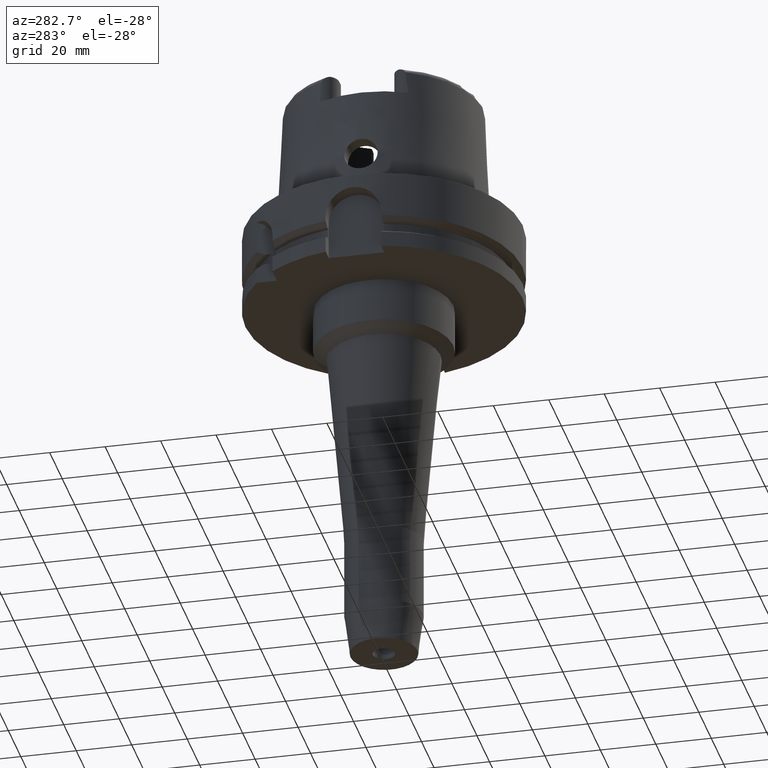
[diagram: clean part render]
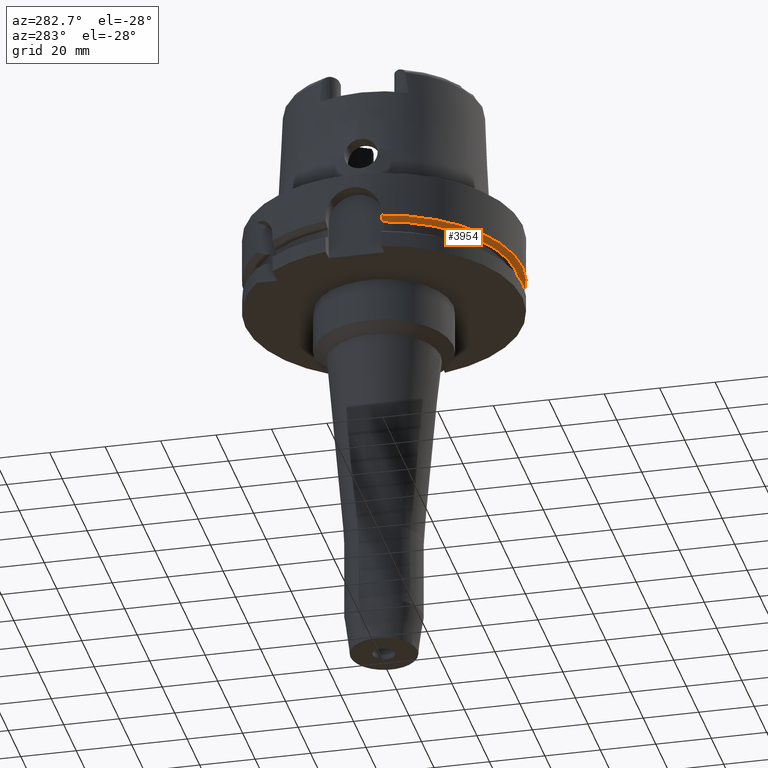
[diagram: same view with one face highlighted and labeled with its STEP entity id]
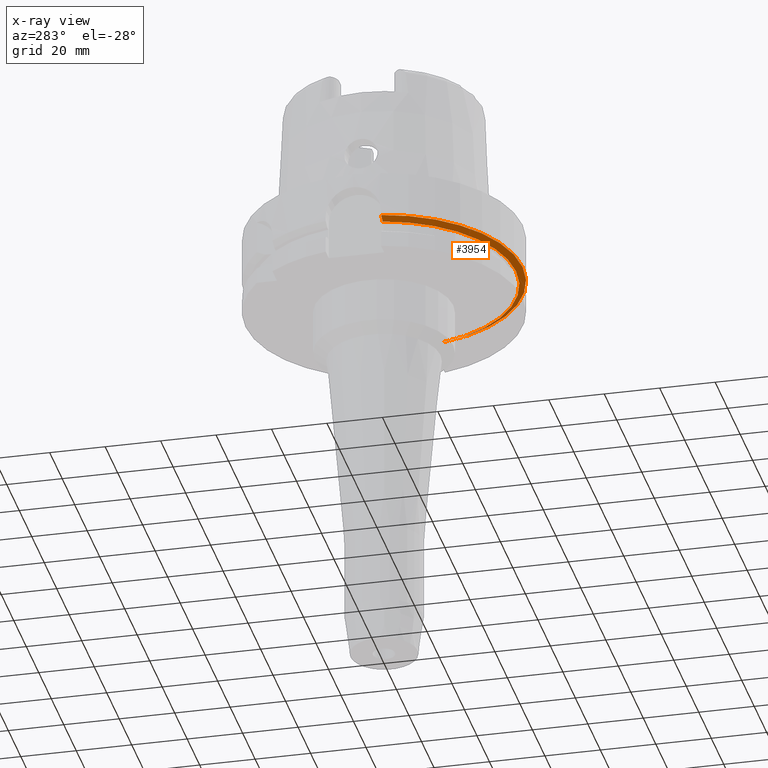
[diagram: x-ray of the same camera — body ghosted, the highlighted face saturated]
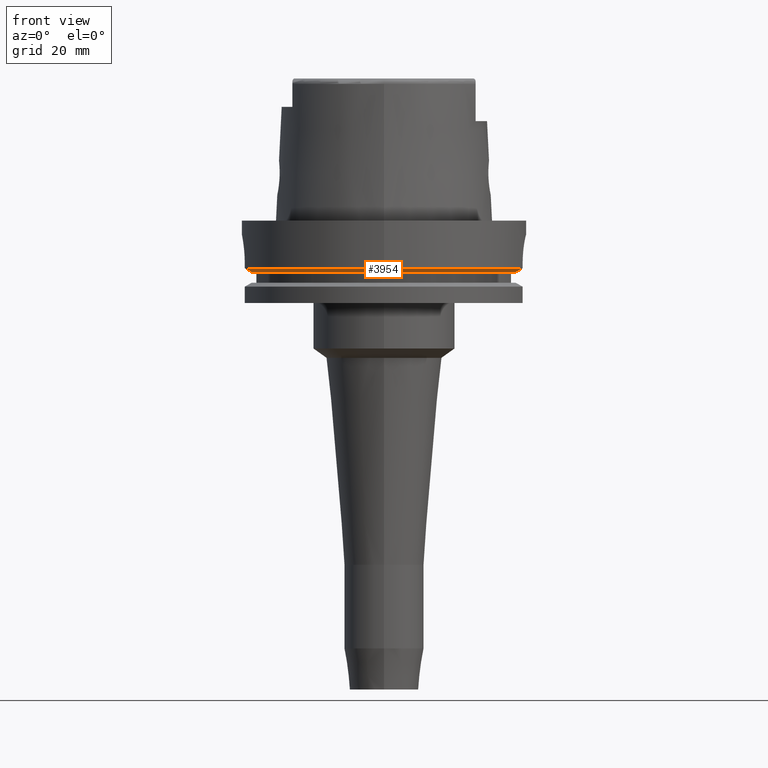
[diagram: same view with one face highlighted and labeled with its STEP entity id]
A machine part, auxiliary view. The second image highlights one B-rep face of the part: STEP entity #3954.
The next image is the same camera in x-ray: the body ghosted, the highlighted face saturated — about 1% of this face is hidden behind the body in this view.
A second angle (front view) of the same face is appended — the face is thin or edge-on in the first view.
In plain terms, the highlighted conical surface has half-angle 60 deg.
Its self-contained STEP definition (entity closure, byte-faithful):
#1823=CARTESIAN_POINT('',(-4.656083740330E1,-1.E1,-1.8125E1));
#1824=CARTESIAN_POINT('',(-4.683084020607E1,-1.E1,-1.797258933137E1));
#1825=CARTESIAN_POINT('',(-4.737076227628E1,-1.E1,-1.766769351207E1));
#1826=CARTESIAN_POINT('',(-4.818041161677E1,-1.E1,-1.721015586611E1));
#1827=CARTESIAN_POINT('',(-4.872002593967E1,-1.E1,-1.690500907969E1));
#1828=CARTESIAN_POINT('',(-4.898979485566E1,-1.E1,-1.675240473581E1));
#1833=CARTESIAN_POINT('',(0.E0,0.E0,-1.675240473581E1));
#1834=DIRECTION('',(0.E0,0.E0,1.E0));
#1835=DIRECTION('',(-9.797958971133E-1,-2.E-1,0.E0));
#1836=AXIS2_PLACEMENT_3D('',#1833,#1834,#1835);
#1841=CARTESIAN_POINT('',(0.E0,0.E0,-1.675240473581E1));
#1842=DIRECTION('',(0.E0,0.E0,1.E0));
#1843=DIRECTION('',(0.E0,-1.E0,0.E0));
#1844=AXIS2_PLACEMENT_3D('',#1841,#1842,#1843);
#1849=CARTESIAN_POINT('',(4.877499359303E1,-1.1E1,-1.675240473581E1));
#1850=CARTESIAN_POINT('',(4.850399904748E1,-1.1E1,-1.690503024962E1));
#1851=CARTESIAN_POINT('',(4.796191616323E1,-1.1E1,-1.721020456770E1));
#1852=CARTESIAN_POINT('',(4.714851446810E1,-1.1E1,-1.766774350267E1));
#1853=CARTESIAN_POINT('',(4.660605711265E1,-1.1E1,-1.797261191789E1));
#1854=CARTESIAN_POINT('',(4.633477721644E1,-1.1E1,-1.8125E1));
#1866=CARTESIAN_POINT('',(0.E0,0.E0,-1.8125E1));
#1867=DIRECTION('',(0.E0,0.E0,1.E0));
#1868=DIRECTION('',(-9.777047459300E-1,-2.099843560504E-1,0.E0));
#1869=AXIS2_PLACEMENT_3D('',#1866,#1867,#1868);
#1874=CARTESIAN_POINT('',(0.E0,0.E0,-1.8125E1));
#1875=DIRECTION('',(0.E0,0.E0,1.E0));
#1876=DIRECTION('',(0.E0,-1.E0,0.E0));
#1877=AXIS2_PLACEMENT_3D('',#1874,#1875,#1876);
#2487=CARTESIAN_POINT('',(-4.898979485566E1,-1.E1,-1.675240473581E1));
#2488=VERTEX_POINT('',#2487);
#2489=VERTEX_POINT('',#1823);
#2538=CARTESIAN_POINT('',(-1.598721155460E-14,-4.762259526419E1,-1.8125E1));
#2539=CARTESIAN_POINT('',(4.633477721644E1,-1.1E1,-1.8125E1));
#2540=VERTEX_POINT('',#2538);
#2541=VERTEX_POINT('',#2539);
#2548=CARTESIAN_POINT('',(0.E0,-5.E1,-1.675240473581E1));
#2549=VERTEX_POINT('',#2548);
#2550=CARTESIAN_POINT('',(4.877499359303E1,-1.1E1,-1.675240473581E1));
#2551=VERTEX_POINT('',#2550);
#3939=CARTESIAN_POINT('',(0.E0,0.E0,-1.743870236790E1));
#3940=DIRECTION('',(0.E0,0.E0,1.E0));
#3941=DIRECTION('',(0.E0,1.E0,0.E0));
#3942=AXIS2_PLACEMENT_3D('',#3939,#3940,#3941);
#3943=CONICAL_SURFACE('',#3942,4.881129763209E1,6.E1);
#3944=ORIENTED_EDGE('',*,*,#3665,.T.);
#3945=ORIENTED_EDGE('',*,*,#3786,.T.);
#3946=ORIENTED_EDGE('',*,*,#3888,.T.);
#3947=ORIENTED_EDGE('',*,*,#3626,.T.);
#3949=ORIENTED_EDGE('',*,*,#3948,.F.);
#3951=ORIENTED_EDGE('',*,*,#3950,.F.);
#3952=EDGE_LOOP('',(#3944,#3945,#3946,#3947,#3949,#3951));
#3953=FACE_OUTER_BOUND('',#3952,.F.);
#1829=B_SPLINE_CURVE_WITH_KNOTS('',3,(#1823,#1824,#1825,#1826,#1827,#1828),
.UNSPECIFIED.,.F.,.F.,(4,1,1,4),(0.E0,3.333333333333E-1,6.666666666667E-1,1.E0),
.UNSPECIFIED.);
#1837=CIRCLE('',#1836,5.E1);
#1845=CIRCLE('',#1844,5.E1);
#1855=B_SPLINE_CURVE_WITH_KNOTS('',3,(#1849,#1850,#1851,#1852,#1853,#1854),
.UNSPECIFIED.,.F.,.F.,(4,1,1,4),(0.E0,3.333333333333E-1,6.666666666667E-1,1.E0),
.UNSPECIFIED.);
#1870=CIRCLE('',#1869,4.762259526419E1);
#1878=CIRCLE('',#1877,4.762259526419E1);
#3626=EDGE_CURVE('',#2551,#2541,#1855,.T.);
#3665=EDGE_CURVE('',#2489,#2488,#1829,.T.);
#3786=EDGE_CURVE('',#2488,#2549,#1837,.T.);
#3888=EDGE_CURVE('',#2549,#2551,#1845,.T.);
#3948=EDGE_CURVE('',#2540,#2541,#1878,.T.);
#3950=EDGE_CURVE('',#2489,#2540,#1870,.T.);
#3954=ADVANCED_FACE('',(#3953),#3943,.T.);